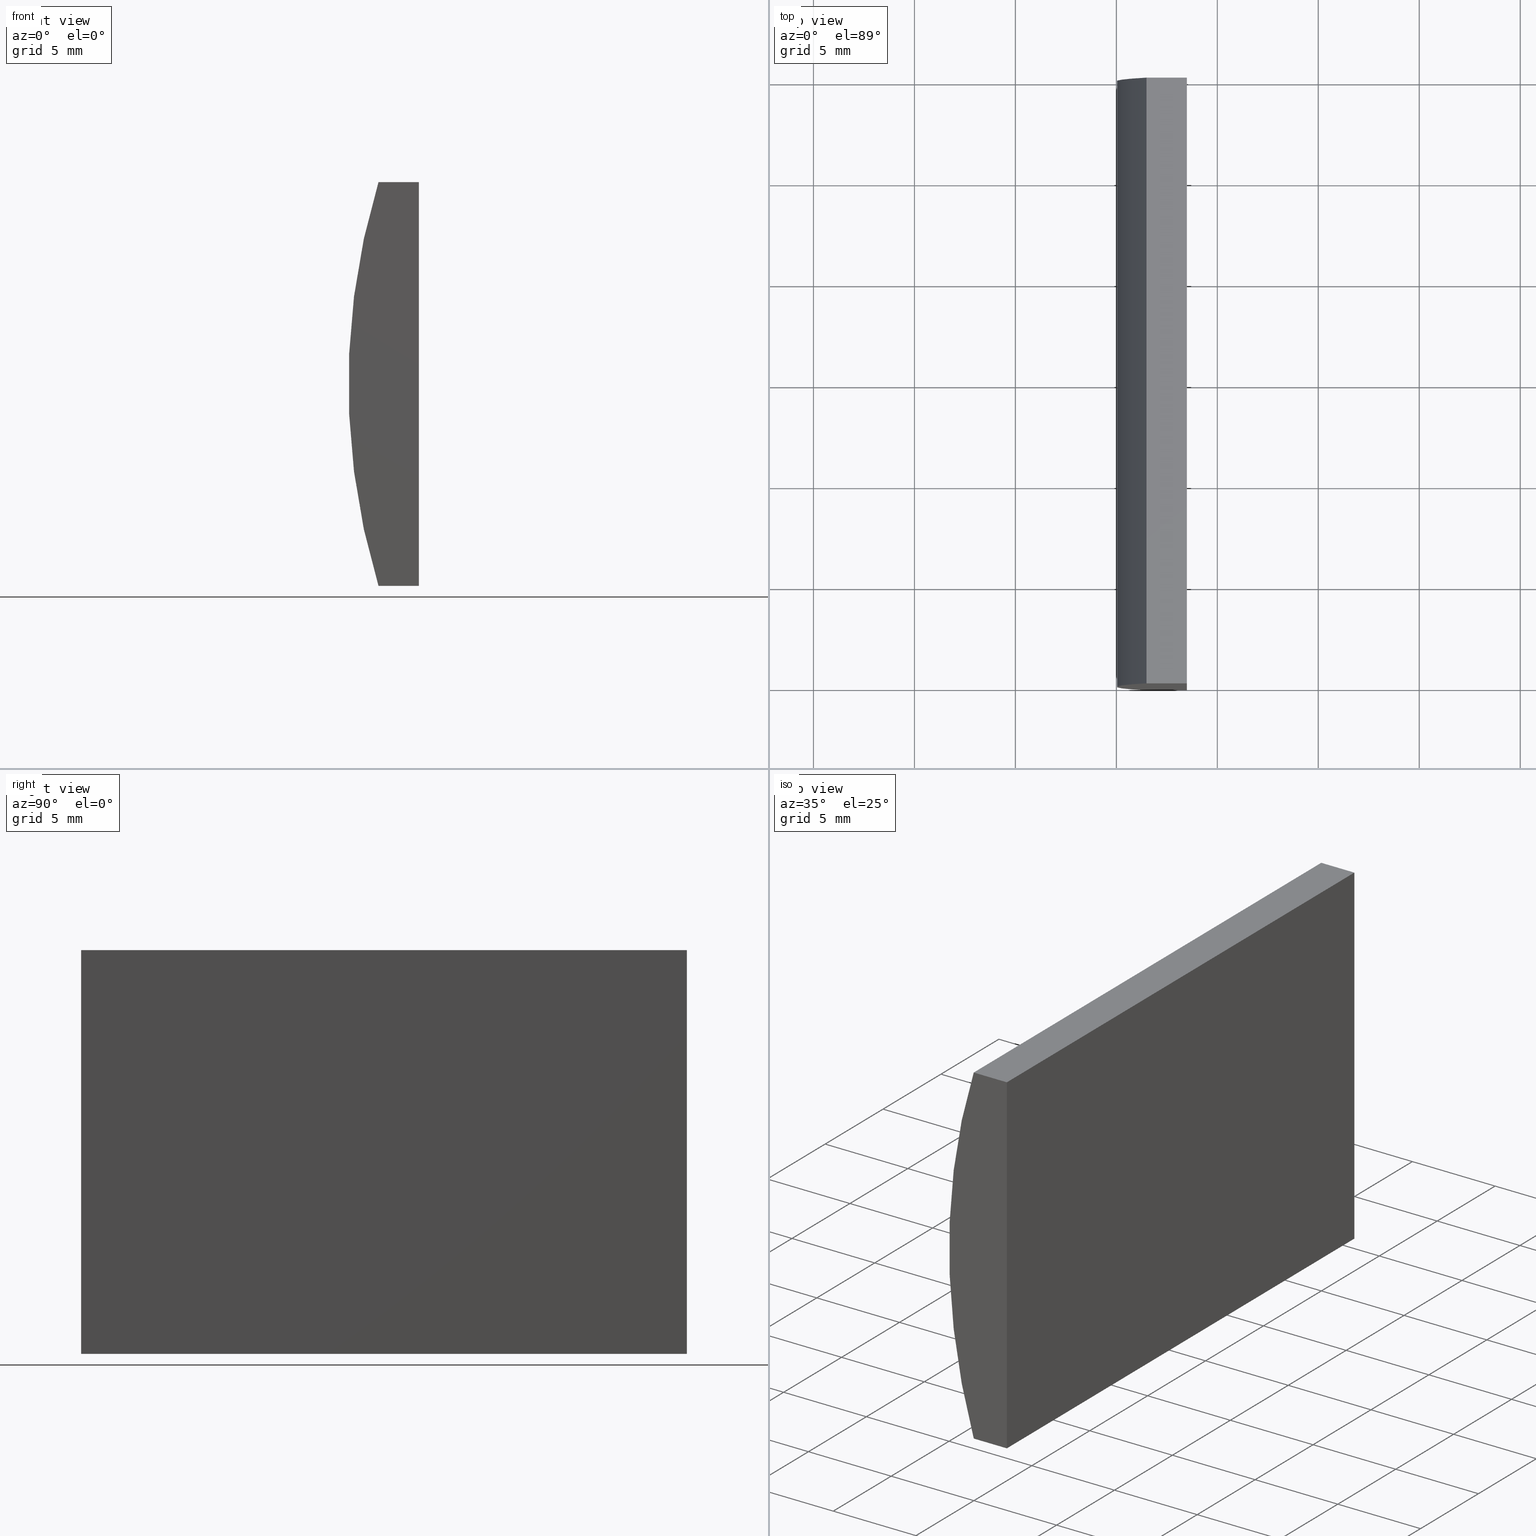
[diagram: canonical four-view strip — front | top / right | iso, engineering-drawing reading convention]
A machine part, canonical four-view strip (front | top / right | iso — engineering-drawing reading convention). The complete STEP part file that produces these views, byte-faithful:
ISO-10303-21;
HEADER;
FILE_DESCRIPTION (( 'STEP AP214' ),
    '1' );
FILE_NAME ('155296.STEP',
    '2019-06-26T06:34:00',
    ( 'user' ),
    ( '΢���й�' ),
    'SwSTEP 2.0',
    'SolidWorks 2016',
    '' );
FILE_SCHEMA (( 'AUTOMOTIVE_DESIGN' ));
ENDSEC;

DATA;
#1 = ORIENTED_EDGE ( 'NONE', *, *, #14, .F. ) ;
#2 = SURFACE_SIDE_STYLE ('',( #48 ) ) ;
#3 = CARTESIAN_POINT ( 'NONE',  ( -26.50479566514873000, 0.0000000000000000000, 10.00000000000000000 ) ) ;
#4 = ORIENTED_EDGE ( 'NONE', *, *, #182, .F. ) ;
#5 = EDGE_CURVE ( 'NONE', #201, #67, #160, .T. ) ;
#6 = APPLICATION_CONTEXT ( 'automotive_design' ) ;
#7 = CARTESIAN_POINT ( 'NONE',  ( -28.50696996935446800, 30.00000000000000000, 10.00000000000000000 ) ) ;
#8 = PRODUCT_DEFINITION ( 'δ֪', '', #140, #126 ) ;
#9 = CARTESIAN_POINT ( 'NONE',  ( 4.355204334851265500, 30.00000000000000000, 4.286263797015675000E-017 ) ) ;
#10 =( LENGTH_UNIT ( ) NAMED_UNIT ( * ) SI_UNIT ( .MILLI., .METRE. ) );
#11 = VECTOR ( 'NONE', #165, 1000.000000000000000 ) ;
#12 = EDGE_LOOP ( 'NONE', ( #104, #4, #32, #162 ) ) ;
#13 = EDGE_CURVE ( 'NONE', #67, #100, #183, .T. ) ;
#14 = EDGE_CURVE ( 'NONE', #201, #147, #17, .T. ) ;
#15 = ORIENTED_EDGE ( 'NONE', *, *, #14, .T. ) ;
#16 = CARTESIAN_POINT ( 'NONE',  ( -28.50696996935446800, 30.00000000000000000, 10.00000000000000000 ) ) ;
#17 = LINE ( 'NONE', #145, #58 ) ;
#18 = PLANE ( 'NONE',  #26 ) ;
#19 = DIRECTION ( 'NONE',  ( -1.000000000000000000, 0.0000000000000000000, 3.469446951953614200E-016 ) ) ;
#20 = ADVANCED_FACE ( 'NONE', ( #121 ), #193, .T. ) ;
#21 = ORIENTED_EDGE ( 'NONE', *, *, #13, .F. ) ;
#22 =( NAMED_UNIT ( * ) SI_UNIT ( $, .STERADIAN. ) SOLID_ANGLE_UNIT ( ) );
#23 = ORIENTED_EDGE ( 'NONE', *, *, #5, .F. ) ;
#24 = PLANE ( 'NONE',  #199 ) ;
#25 = VERTEX_POINT ( 'NONE', #63 ) ;
#26 = AXIS2_PLACEMENT_3D ( 'NONE', #7, #51, #92 ) ;
#27 = MECHANICAL_DESIGN_GEOMETRIC_PRESENTATION_REPRESENTATION (  '', ( #202 ), #97 ) ;
#28 = VECTOR ( 'NONE', #49, 1000.000000000000000 ) ;
#29 = CARTESIAN_POINT ( 'NONE',  ( 4.355204334851265500, 0.0000000000000000000, 4.286263797015675000E-017 ) ) ;
#30 = VECTOR ( 'NONE', #139, 1000.000000000000000 ) ;
#31 = ORIENTED_EDGE ( 'NONE', *, *, #5, .T. ) ;
#32 = ORIENTED_EDGE ( 'NONE', *, *, #204, .F. ) ;
#33 = ADVANCED_BREP_SHAPE_REPRESENTATION ( '155296', ( #175, #86 ), #54 ) ;
#34 = APPLICATION_PROTOCOL_DEFINITION ( 'draft international standard', 'automotive_design', 1998, #128 ) ;
#35 = PRODUCT_DEFINITION_SHAPE ( 'NONE', 'NONE',  #8 ) ;
#36 = DIRECTION ( 'NONE',  ( -1.000000000000000000, -0.0000000000000000000, -0.0000000000000000000 ) ) ;
#37 = DIRECTION ( 'NONE',  ( 0.0000000000000000000, -0.0000000000000000000, 1.000000000000000000 ) ) ;
#38 =( NAMED_UNIT ( * ) SI_UNIT ( $, .STERADIAN. ) SOLID_ANGLE_UNIT ( ) );
#39 = UNCERTAINTY_MEASURE_WITH_UNIT (LENGTH_MEASURE( 1.000000000000000100E-005 ), #70, 'distance_accuracy_value', 'NONE');
#40 = CARTESIAN_POINT ( 'NONE',  ( 4.355204334851265500, 0.0000000000000000000, 4.286263797015675000E-017 ) ) ;
#41 = CARTESIAN_POINT ( 'NONE',  ( -28.50696996935446800, 30.00000000000000000, -10.00000000000000000 ) ) ;
#42 = COLOUR_RGB ( '',1.000000000000000000, 1.000000000000000000, 1.000000000000000000 ) ;
#43 = CARTESIAN_POINT ( 'NONE',  ( 4.355204334851265500, 30.00000000000000000, 4.286263797015675000E-017 ) ) ;
#44 = ADVANCED_FACE ( 'NONE', ( #138 ), #18, .F. ) ;
#45 = ORIENTED_EDGE ( 'NONE', *, *, #204, .T. ) ;
#46 = LINE ( 'NONE', #131, #190 ) ;
#47 = ADVANCED_FACE ( 'NONE', ( #65 ), #90, .T. ) ;
#48 = SURFACE_STYLE_FILL_AREA ( #73 ) ;
#49 = DIRECTION ( 'NONE',  ( 1.000000000000000000, 0.0000000000000000000, 0.0000000000000000000 ) ) ;
#50 = PRESENTATION_LAYER_ASSIGNMENT (  '', '', ( #202 ) ) ;
#51 = DIRECTION ( 'NONE',  ( 0.0000000000000000000, 0.0000000000000000000, -1.000000000000000000 ) ) ;
#52 = DIRECTION ( 'NONE',  ( 1.000000000000000000, 0.0000000000000000000, 0.0000000000000000000 ) ) ;
#53 = LINE ( 'NONE', #59, #30 ) ;
#54 =( GEOMETRIC_REPRESENTATION_CONTEXT ( 3 ) GLOBAL_UNCERTAINTY_ASSIGNED_CONTEXT ( ( #39 ) ) GLOBAL_UNIT_ASSIGNED_CONTEXT ( ( #70, #116, #132 ) ) REPRESENTATION_CONTEXT ( 'NONE', 'WORKASPACE' ) );
#55 = FILL_AREA_STYLE_COLOUR ( '', #94 ) ;
#56 = EDGE_CURVE ( 'NONE', #100, #178, #148, .T. ) ;
#57 = DIRECTION ( 'NONE',  ( 0.0000000000000000000, 1.000000000000000000, 0.0000000000000000000 ) ) ;
#58 = VECTOR ( 'NONE', #177, 1000.000000000000000 ) ;
#59 = CARTESIAN_POINT ( 'NONE',  ( -28.50696996935446800, 0.0000000000000000000, 10.00000000000000000 ) ) ;
#60 = ORIENTED_EDGE ( 'NONE', *, *, #66, .T. ) ;
#61 = CARTESIAN_POINT ( 'NONE',  ( -28.50696996935446800, 0.0000000000000000000, -10.00000000000000000 ) ) ;
#62 = MECHANICAL_DESIGN_GEOMETRIC_PRESENTATION_REPRESENTATION (  '', ( #149 ), #123 ) ;
#63 = CARTESIAN_POINT ( 'NONE',  ( -28.50696996935446800, 30.00000000000000000, 10.00000000000000000 ) ) ;
#64 = ORIENTED_EDGE ( 'NONE', *, *, #80, .F. ) ;
#65 = FACE_OUTER_BOUND ( 'NONE', #136, .T. ) ;
#66 = EDGE_CURVE ( 'NONE', #153, #179, #46, .T. ) ;
#67 = VERTEX_POINT ( 'NONE', #89 ) ;
#68 = SHAPE_DEFINITION_REPRESENTATION ( #35, #33 ) ;
#69 = CARTESIAN_POINT ( 'NONE',  ( -28.50696996935446800, 0.0000000000000000000, -10.00000000000000000 ) ) ;
#70 =( LENGTH_UNIT ( ) NAMED_UNIT ( * ) SI_UNIT ( .MILLI., .METRE. ) );
#71 = DIRECTION ( 'NONE',  ( -0.0000000000000000000, -1.000000000000000000, -0.0000000000000000000 ) ) ;
#72 = ORIENTED_EDGE ( 'NONE', *, *, #80, .T. ) ;
#73 = FILL_AREA_STYLE ('',( #55 ) ) ;
#74 = VECTOR ( 'NONE', #81, 1000.000000000000000 ) ;
#75 = ADVANCED_FACE ( 'NONE', ( #84 ), #24, .F. ) ;
#76 = FACE_OUTER_BOUND ( 'NONE', #143, .T. ) ;
#77 = ORIENTED_EDGE ( 'NONE', *, *, #117, .F. ) ;
#78 = DIRECTION ( 'NONE',  ( -1.000000000000000000, -0.0000000000000000000, -0.0000000000000000000 ) ) ;
#79 = DIRECTION ( 'NONE',  ( 0.0000000000000000000, 1.000000000000000000, 0.0000000000000000000 ) ) ;
#80 = EDGE_CURVE ( 'NONE', #25, #178, #102, .T. ) ;
#81 = DIRECTION ( 'NONE',  ( -3.469446951953614200E-016, -0.0000000000000000000, -1.000000000000000000 ) ) ;
#82 = LINE ( 'NONE', #151, #168 ) ;
#83 = CARTESIAN_POINT ( 'NONE',  ( -26.50479566514873800, 0.0000000000000000000, -10.00000000000000000 ) ) ;
#84 = FACE_OUTER_BOUND ( 'NONE', #12, .T. ) ;
#85 = PLANE ( 'NONE',  #203 ) ;
#86 = AXIS2_PLACEMENT_3D ( 'NONE', #141, #192, #52 ) ;
#87 = EDGE_LOOP ( 'NONE', ( #45, #1, #77, #60 ) ) ;
#88 =( NAMED_UNIT ( * ) PLANE_ANGLE_UNIT ( ) SI_UNIT ( $, .RADIAN. ) );
#89 = CARTESIAN_POINT ( 'NONE',  ( -28.50696996935446800, 30.00000000000000000, -10.00000000000000000 ) ) ;
#90 = CYLINDRICAL_SURFACE ( 'NONE', #174, 34.34999999999999400 ) ;
#91 = FACE_OUTER_BOUND ( 'NONE', #87, .T. ) ;
#92 = DIRECTION ( 'NONE',  ( -1.000000000000000000, 0.0000000000000000000, -0.0000000000000000000 ) ) ;
#93 = ORIENTED_EDGE ( 'NONE', *, *, #117, .T. ) ;
#94 = COLOUR_RGB ( '',1.000000000000000000, 1.000000000000000000, 1.000000000000000000 ) ;
#95 = EDGE_CURVE ( 'NONE', #25, #153, #119, .T. ) ;
#96 = DIRECTION ( 'NONE',  ( 0.0000000000000000000, 0.0000000000000000000, -1.000000000000000000 ) ) ;
#97 =( GEOMETRIC_REPRESENTATION_CONTEXT ( 3 ) GLOBAL_UNCERTAINTY_ASSIGNED_CONTEXT ( ( #185 ) ) GLOBAL_UNIT_ASSIGNED_CONTEXT ( ( #10, #88, #22 ) ) REPRESENTATION_CONTEXT ( 'NONE', 'WORKASPACE' ) );
#98 = SURFACE_SIDE_STYLE ('',( #101 ) ) ;
#99 = ORIENTED_EDGE ( 'NONE', *, *, #66, .F. ) ;
#100 = VERTEX_POINT ( 'NONE', #61 ) ;
#101 = SURFACE_STYLE_FILL_AREA ( #110 ) ;
#102 = LINE ( 'NONE', #16, #176 ) ;
#103 = FILL_AREA_STYLE_COLOUR ( '', #42 ) ;
#104 = ORIENTED_EDGE ( 'NONE', *, *, #56, .F. ) ;
#105 = ORIENTED_EDGE ( 'NONE', *, *, #144, .T. ) ;
#106 = AXIS2_PLACEMENT_3D ( 'NONE', #198, #186, #172 ) ;
#107 = UNCERTAINTY_MEASURE_WITH_UNIT (LENGTH_MEASURE( 1.000000000000000100E-005 ), #109, 'distance_accuracy_value', 'NONE');
#108 = ORIENTED_EDGE ( 'NONE', *, *, #13, .T. ) ;
#109 =( LENGTH_UNIT ( ) NAMED_UNIT ( * ) SI_UNIT ( .MILLI., .METRE. ) );
#110 = FILL_AREA_STYLE ('',( #103 ) ) ;
#111 =( NAMED_UNIT ( * ) PLANE_ANGLE_UNIT ( ) SI_UNIT ( $, .RADIAN. ) );
#112 = DIRECTION ( 'NONE',  ( 0.0000000000000000000, 1.000000000000000000, 0.0000000000000000000 ) ) ;
#113 = SURFACE_STYLE_USAGE ( .BOTH. , #98 ) ;
#114 = AXIS2_PLACEMENT_3D ( 'NONE', #9, #79, #118 ) ;
#115 = DIRECTION ( 'NONE',  ( 0.0000000000000000000, 0.0000000000000000000, 1.000000000000000000 ) ) ;
#116 =( NAMED_UNIT ( * ) PLANE_ANGLE_UNIT ( ) SI_UNIT ( $, .RADIAN. ) );
#117 = EDGE_CURVE ( 'NONE', #153, #201, #200, .T. ) ;
#118 = DIRECTION ( 'NONE',  ( 0.0000000000000000000, -0.0000000000000000000, 1.000000000000000000 ) ) ;
#119 = LINE ( 'NONE', #156, #28 ) ;
#120 = CLOSED_SHELL ( 'NONE', ( #47, #44, #197, #157, #20, #75 ) ) ;
#121 = FACE_OUTER_BOUND ( 'NONE', #134, .T. ) ;
#122 = PRESENTATION_STYLE_ASSIGNMENT (( #113 ) ) ;
#123 =( GEOMETRIC_REPRESENTATION_CONTEXT ( 3 ) GLOBAL_UNCERTAINTY_ASSIGNED_CONTEXT ( ( #107 ) ) GLOBAL_UNIT_ASSIGNED_CONTEXT ( ( #109, #111, #38 ) ) REPRESENTATION_CONTEXT ( 'NONE', 'WORKASPACE' ) );
#124 = CARTESIAN_POINT ( 'NONE',  ( -26.50479566514873000, 30.00000000000000000, 10.00000000000000000 ) ) ;
#125 = VECTOR ( 'NONE', #36, 1000.000000000000000 ) ;
#126 = PRODUCT_DEFINITION_CONTEXT ( 'detailed design', #6, 'design' ) ;
#127 = DIRECTION ( 'NONE',  ( -0.0000000000000000000, -1.000000000000000000, -0.0000000000000000000 ) ) ;
#128 = APPLICATION_CONTEXT ( 'automotive_design' ) ;
#129 = DIRECTION ( 'NONE',  ( 3.469446951953614200E-016, 0.0000000000000000000, 1.000000000000000000 ) ) ;
#130 = CARTESIAN_POINT ( 'NONE',  ( -28.50696996935446800, 0.0000000000000000000, 10.00000000000000000 ) ) ;
#131 = CARTESIAN_POINT ( 'NONE',  ( -26.50479566514873000, 30.00000000000000000, 10.00000000000000000 ) ) ;
#132 =( NAMED_UNIT ( * ) SI_UNIT ( $, .STERADIAN. ) SOLID_ANGLE_UNIT ( ) );
#133 = PRESENTATION_LAYER_ASSIGNMENT (  '', '', ( #149 ) ) ;
#134 = EDGE_LOOP ( 'NONE', ( #187, #142, #93, #31 ) ) ;
#135 = AXIS2_PLACEMENT_3D ( 'NONE', #40, #188, #146 ) ;
#136 = EDGE_LOOP ( 'NONE', ( #189, #64, #137, #108 ) ) ;
#137 = ORIENTED_EDGE ( 'NONE', *, *, #195, .F. ) ;
#138 = FACE_OUTER_BOUND ( 'NONE', #184, .T. ) ;
#139 = DIRECTION ( 'NONE',  ( 1.000000000000000000, 0.0000000000000000000, 0.0000000000000000000 ) ) ;
#140 = PRODUCT_DEFINITION_FORMATION_WITH_SPECIFIED_SOURCE ( '�κ�', '', #155, .NOT_KNOWN. ) ;
#141 = CARTESIAN_POINT ( 'NONE',  ( 0.0000000000000000000, 0.0000000000000000000, 0.0000000000000000000 ) ) ;
#142 = ORIENTED_EDGE ( 'NONE', *, *, #95, .T. ) ;
#143 = EDGE_LOOP ( 'NONE', ( #181, #21, #23, #15 ) ) ;
#144 = EDGE_CURVE ( 'NONE', #178, #179, #53, .T. ) ;
#145 = CARTESIAN_POINT ( 'NONE',  ( -26.50479566514873800, 30.00000000000000000, -10.00000000000000000 ) ) ;
#146 = DIRECTION ( 'NONE',  ( 0.0000000000000000000, 0.0000000000000000000, 1.000000000000000000 ) ) ;
#147 = VERTEX_POINT ( 'NONE', #83 ) ;
#148 = CIRCLE ( 'NONE', #135, 34.34999999999999400 ) ;
#149 = STYLED_ITEM ( 'NONE', ( #122 ), #175 ) ;
#150 = CARTESIAN_POINT ( 'NONE',  ( -26.50479566514873800, 30.00000000000000000, -10.00000000000000000 ) ) ;
#151 = CARTESIAN_POINT ( 'NONE',  ( -26.50479566514873800, 0.0000000000000000000, -10.00000000000000000 ) ) ;
#152 = APPLICATION_PROTOCOL_DEFINITION ( 'draft international standard', 'automotive_design', 1998, #6 ) ;
#153 = VERTEX_POINT ( 'NONE', #124 ) ;
#154 = CARTESIAN_POINT ( 'NONE',  ( -26.50479566514873800, 30.00000000000000000, -10.00000000000000000 ) ) ;
#155 = PRODUCT ( '155296', '155296', '', ( #158 ) ) ;
#156 = CARTESIAN_POINT ( 'NONE',  ( -28.50696996935446800, 30.00000000000000000, 10.00000000000000000 ) ) ;
#157 = ADVANCED_FACE ( 'NONE', ( #76 ), #196, .F. ) ;
#158 = PRODUCT_CONTEXT ( 'NONE', #128, 'mechanical' ) ;
#159 = VECTOR ( 'NONE', #78, 1000.000000000000000 ) ;
#160 = LINE ( 'NONE', #41, #159 ) ;
#161 = CARTESIAN_POINT ( 'NONE',  ( 4.355204334851265500, 30.00000000000000000, 4.286263797015675000E-017 ) ) ;
#162 = ORIENTED_EDGE ( 'NONE', *, *, #144, .F. ) ;
#163 = PRESENTATION_STYLE_ASSIGNMENT (( #171 ) ) ;
#164 = DIRECTION ( 'NONE',  ( -0.0000000000000000000, -1.000000000000000000, -0.0000000000000000000 ) ) ;
#165 = DIRECTION ( 'NONE',  ( -0.0000000000000000000, -1.000000000000000000, -0.0000000000000000000 ) ) ;
#166 = PRODUCT_RELATED_PRODUCT_CATEGORY ( 'part', '', ( #155 ) ) ;
#167 = ORIENTED_EDGE ( 'NONE', *, *, #95, .F. ) ;
#168 = VECTOR ( 'NONE', #170, 1000.000000000000000 ) ;
#169 = AXIS2_PLACEMENT_3D ( 'NONE', #43, #57, #115 ) ;
#170 = DIRECTION ( 'NONE',  ( -3.469446951953614200E-016, -0.0000000000000000000, -1.000000000000000000 ) ) ;
#171 = SURFACE_STYLE_USAGE ( .BOTH. , #2 ) ;
#172 = DIRECTION ( 'NONE',  ( 1.000000000000000000, 0.0000000000000000000, -0.0000000000000000000 ) ) ;
#173 = CIRCLE ( 'NONE', #169, 34.34999999999999400 ) ;
#174 = AXIS2_PLACEMENT_3D ( 'NONE', #161, #127, #96 ) ;
#175 = MANIFOLD_SOLID_BREP ( '͹̨-����1', #120 ) ;
#176 = VECTOR ( 'NONE', #71, 1000.000000000000000 ) ;
#177 = DIRECTION ( 'NONE',  ( -0.0000000000000000000, -1.000000000000000000, -0.0000000000000000000 ) ) ;
#178 = VERTEX_POINT ( 'NONE', #130 ) ;
#179 = VERTEX_POINT ( 'NONE', #3 ) ;
#180 = CARTESIAN_POINT ( 'NONE',  ( -26.50479566514873800, 30.00000000000000000, -10.00000000000000000 ) ) ;
#181 = ORIENTED_EDGE ( 'NONE', *, *, #182, .T. ) ;
#182 = EDGE_CURVE ( 'NONE', #147, #100, #194, .T. ) ;
#183 = LINE ( 'NONE', #191, #11 ) ;
#184 = EDGE_LOOP ( 'NONE', ( #105, #99, #167, #72 ) ) ;
#185 = UNCERTAINTY_MEASURE_WITH_UNIT (LENGTH_MEASURE( 1.000000000000000100E-005 ), #10, 'distance_accuracy_value', 'NONE');
#186 = DIRECTION ( 'NONE',  ( 0.0000000000000000000, 0.0000000000000000000, 1.000000000000000000 ) ) ;
#187 = ORIENTED_EDGE ( 'NONE', *, *, #195, .T. ) ;
#188 = DIRECTION ( 'NONE',  ( 0.0000000000000000000, 1.000000000000000000, 0.0000000000000000000 ) ) ;
#189 = ORIENTED_EDGE ( 'NONE', *, *, #56, .T. ) ;
#190 = VECTOR ( 'NONE', #164, 1000.000000000000000 ) ;
#191 = CARTESIAN_POINT ( 'NONE',  ( -28.50696996935446800, 30.00000000000000000, -10.00000000000000000 ) ) ;
#192 = DIRECTION ( 'NONE',  ( 0.0000000000000000000, 0.0000000000000000000, 1.000000000000000000 ) ) ;
#193 = PLANE ( 'NONE',  #114 ) ;
#194 = LINE ( 'NONE', #69, #125 ) ;
#195 = EDGE_CURVE ( 'NONE', #67, #25, #173, .T. ) ;
#196 = PLANE ( 'NONE',  #106 ) ;
#197 = ADVANCED_FACE ( 'NONE', ( #91 ), #85, .F. ) ;
#198 = CARTESIAN_POINT ( 'NONE',  ( -28.50696996935446800, 30.00000000000000000, -10.00000000000000000 ) ) ;
#199 = AXIS2_PLACEMENT_3D ( 'NONE', #29, #112, #37 ) ;
#200 = LINE ( 'NONE', #180, #74 ) ;
#201 = VERTEX_POINT ( 'NONE', #154 ) ;
#202 = STYLED_ITEM ( 'NONE', ( #163 ), #33 ) ;
#203 = AXIS2_PLACEMENT_3D ( 'NONE', #150, #19, #129 ) ;
#204 = EDGE_CURVE ( 'NONE', #179, #147, #82, .T. ) ;
ENDSEC;
END-ISO-10303-21;
